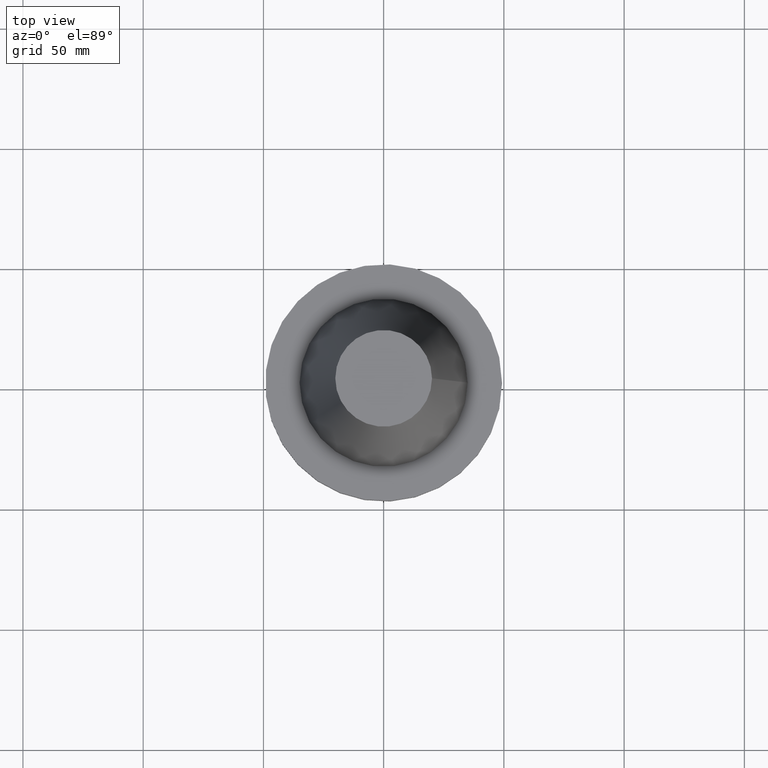
[diagram: clean part render]
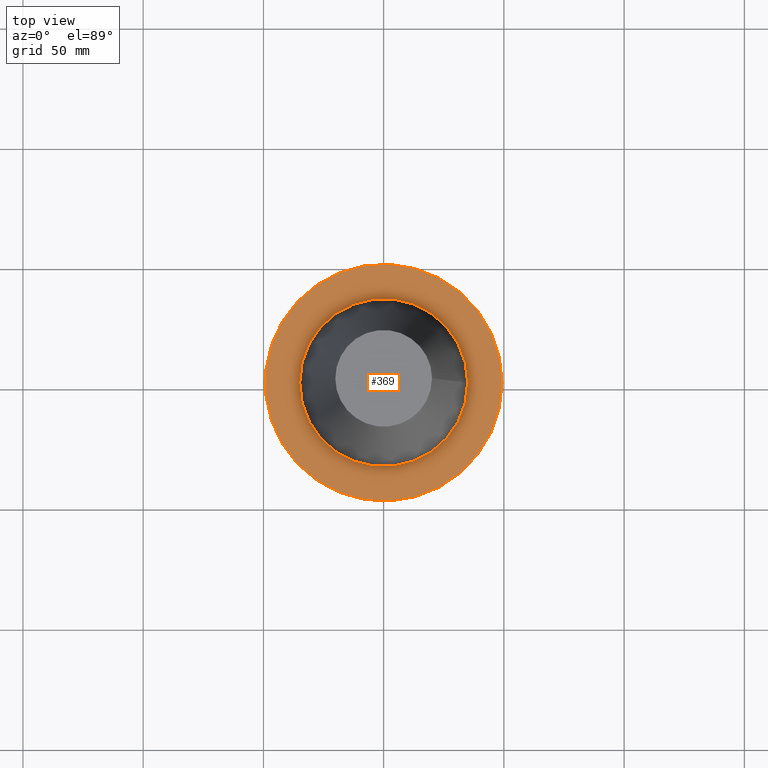
[diagram: same view with one face highlighted and labeled with its STEP entity id]
A machine part, top view. The second image highlights one B-rep face of the part: STEP entity #369.
In plain terms, the highlighted planar face has unit normal (0, 0, -1).
Its self-contained STEP definition (entity closure, byte-faithful):
#1 = AXIS2_PLACEMENT_3D ( 'NONE', #275, #333, #384 ) ;
#32 = EDGE_CURVE ( 'NONE', #128, #128, #366, .T. ) ;
#34 = CIRCLE ( 'NONE', #313, 34.92499999999999005 ) ;
#70 = FACE_BOUND ( 'NONE', #315, .T. ) ;
#73 = DIRECTION ( 'NONE',  ( -1.000000000000000000, 0.000000000000000000, -0.000000000000000000 ) ) ;
#98 = DIRECTION ( 'NONE',  ( -0.000000000000000000, -0.000000000000000000, 1.000000000000000000 ) ) ;
#128 = VERTEX_POINT ( 'NONE', #259 ) ;
#166 = AXIS2_PLACEMENT_3D ( 'NONE', #353, #261, #73 ) ;
#220 = VERTEX_POINT ( 'NONE', #347 ) ;
#225 = DIRECTION ( 'NONE',  ( 1.000000000000000000, 0.000000000000000000, 0.000000000000000000 ) ) ;
#259 = CARTESIAN_POINT ( 'NONE',  ( 49.21499999999999631, 0.000000000000000000, -1.499999999999987566 ) ) ;
#261 = DIRECTION ( 'NONE',  ( 0.000000000000000000, 0.000000000000000000, -1.000000000000000000 ) ) ;
#275 = CARTESIAN_POINT ( 'NONE',  ( 0.000000000000000000, 0.000000000000000000, -1.499999999999987566 ) ) ;
#278 = EDGE_LOOP ( 'NONE', ( #319 ) ) ;
#313 = AXIS2_PLACEMENT_3D ( 'NONE', #376, #98, #225 ) ;
#315 = EDGE_LOOP ( 'NONE', ( #358 ) ) ;
#319 = ORIENTED_EDGE ( 'NONE', *, *, #32, .T. ) ;
#333 = DIRECTION ( 'NONE',  ( -0.000000000000000000, -0.000000000000000000, 1.000000000000000000 ) ) ;
#347 = CARTESIAN_POINT ( 'NONE',  ( 34.92499999999999005, 0.000000000000000000, -1.499999999999987566 ) ) ;
#353 = CARTESIAN_POINT ( 'NONE',  ( 0.000000000000000000, 49.21499999999999631, -1.499999999999992895 ) ) ;
#358 = ORIENTED_EDGE ( 'NONE', *, *, #392, .F. ) ;
#366 = CIRCLE ( 'NONE', #1, 49.21499999999999631 ) ;
#369 = ADVANCED_FACE ( 'NONE', ( #70, #380 ), #377, .F. ) ;
#376 = CARTESIAN_POINT ( 'NONE',  ( 0.000000000000000000, 0.000000000000000000, -1.499999999999987566 ) ) ;
#377 = PLANE ( 'NONE',  #166 ) ;
#380 = FACE_OUTER_BOUND ( 'NONE', #278, .T. ) ;
#384 = DIRECTION ( 'NONE',  ( 1.000000000000000000, 0.000000000000000000, 0.000000000000000000 ) ) ;
#392 = EDGE_CURVE ( 'NONE', #220, #220, #34, .T. ) ;